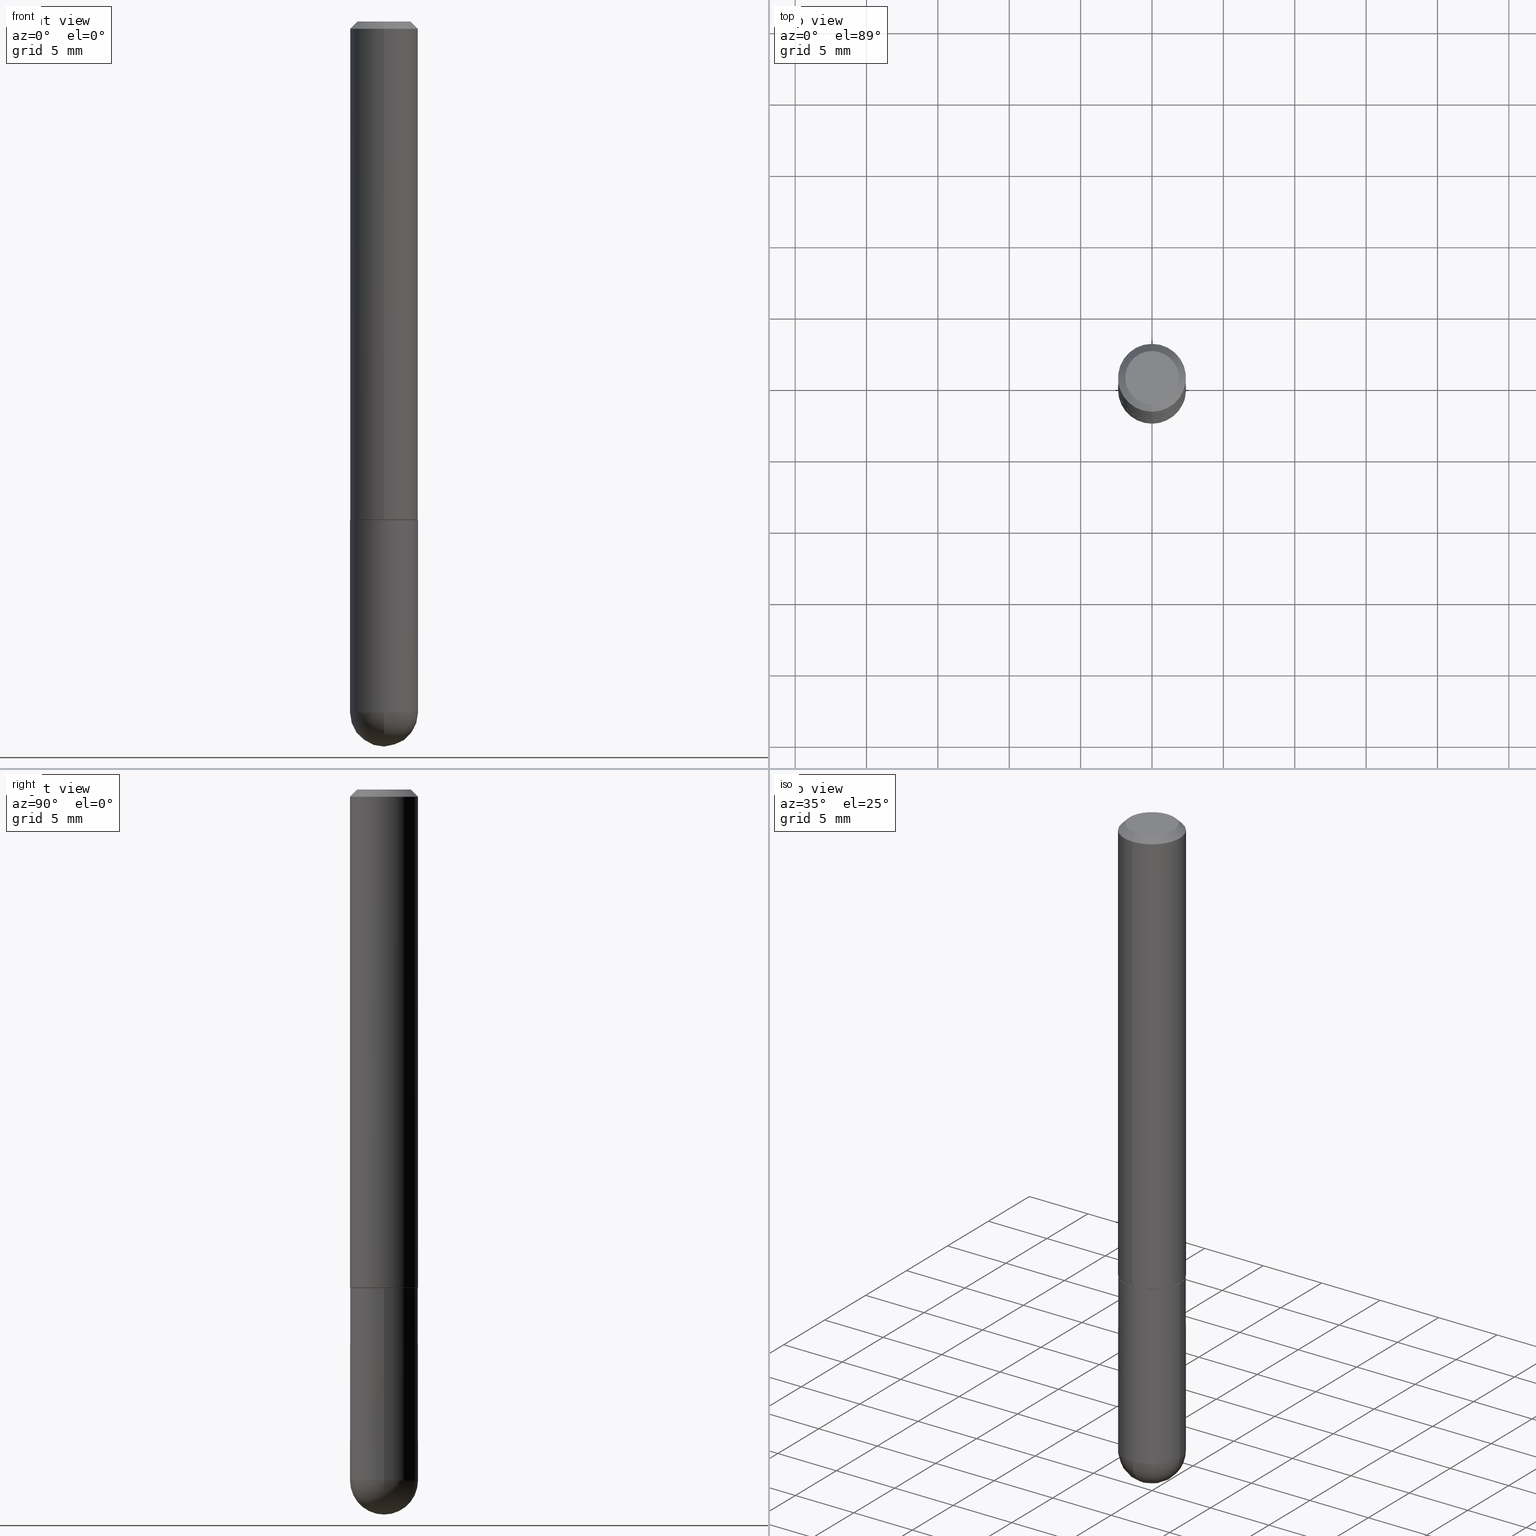
[diagram: canonical four-view strip — front | top / right | iso, engineering-drawing reading convention]
A machine part, canonical four-view strip (front | top / right | iso — engineering-drawing reading convention). The complete STEP part file that produces these views, byte-faithful:
ISO-10303-21;
HEADER;
FILE_DESCRIPTION (( 'STEP AP203' ),
    '1' );
FILE_NAME ('30042.STEP',
    '2024-02-21T16:34:47',
    ( '' ),
    ( '' ),
    'SwSTEP 2.0',
    'SolidWorks 2023',
    '' );
FILE_SCHEMA (( 'CONFIG_CONTROL_DESIGN' ));
ENDSEC;

DATA;
#1 = PRODUCT_RELATED_PRODUCT_CATEGORY ( 'detail', '', ( #290 ) ) ;
#2 = LINE ( 'NONE', #206, #280 ) ;
#3 = ADVANCED_FACE ( 'NONE', ( #48 ), #278, .T. ) ;
#4 = CARTESIAN_POINT ( 'NONE',  ( -6.661338147750496494E-16, -0.09375000000000702216, -1.906249999999999556 ) ) ;
#5 = PERSON_AND_ORGANIZATION ( #156, #126 ) ;
#6 = CLOSED_SHELL ( 'NONE', ( #3, #340, #371, #360, #263, #181, #59, #45 ) ) ;
#7 = CARTESIAN_POINT ( 'NONE',  ( 1.026711923411139363E-46, -1.466656753628731652E-32, -4.199547131448685395E-18 ) ) ;
#8 = CARTESIAN_POINT ( 'NONE',  ( 0.000000000000000000, 0.000000000000000000, 0.000000000000000000 ) ) ;
#9 = ORIENTED_EDGE ( 'NONE', *, *, #144, .T. ) ;
#10 = ORIENTED_EDGE ( 'NONE', *, *, #96, .F. ) ;
#11 = AXIS2_PLACEMENT_3D ( 'NONE', #134, #391, #44 ) ;
#12 = LOCAL_TIME ( 11, 34, 47.00000000000000000, #64 ) ;
#13 = EDGE_LOOP ( 'NONE', ( #306, #49, #116, #245 ) ) ;
#14 = VERTEX_POINT ( 'NONE', #209 ) ;
#15 = DIRECTION ( 'NONE',  ( -4.937700262164799689E-15, -0.7071067811865812125, 0.7071067811865135999 ) ) ;
#16 = VERTEX_POINT ( 'NONE', #364 ) ;
#17 = ORIENTED_EDGE ( 'NONE', *, *, #96, .T. ) ;
#18 = EDGE_CURVE ( 'NONE', #372, #16, #88, .T. ) ;
#19 = FACE_OUTER_BOUND ( 'NONE', #284, .T. ) ;
#20 = VERTEX_POINT ( 'NONE', #213 ) ;
#21 = MECHANICAL_CONTEXT ( 'NONE', #157, 'mechanical' ) ;
#22 = AXIS2_PLACEMENT_3D ( 'NONE', #67, #325, #158 ) ;
#23 = ORIENTED_EDGE ( 'NONE', *, *, #18, .T. ) ;
#24 = CARTESIAN_POINT ( 'NONE',  ( 3.361621742779019407E-29, -4.802072635731645484E-15, -1.375000000000000000 ) ) ;
#25 = DIRECTION ( 'NONE',  ( -2.444815812930196646E-29, 3.492416462350287517E-15, 1.000000000000000000 ) ) ;
#26 = EDGE_CURVE ( 'NONE', #16, #372, #331, .T. ) ;
#27 = DIRECTION ( 'NONE',  ( 0.000000000000000000, 0.000000000000000000, 1.000000000000000000 ) ) ;
#28 = DIRECTION ( 'NONE',  ( -6.982962677686265922E-15, -1.000000000000000000, 3.492416462350287517E-15 ) ) ;
#29 = CIRCLE ( 'NONE', #129, 0.09274999999999999911 ) ;
#30 = PERSON_AND_ORGANIZATION_ROLE ( 'creator' ) ;
#31 = EDGE_CURVE ( 'NONE', #368, #14, #69, .T. ) ;
#32 = PERSON_AND_ORGANIZATION ( #156, #126 ) ;
#33 = APPROVAL ( #86, 'UNSPECIFIED' ) ;
#34 = PERSON_AND_ORGANIZATION ( #156, #126 ) ;
#35 = FACE_OUTER_BOUND ( 'NONE', #304, .T. ) ;
#36 = DIRECTION ( 'NONE',  ( -1.000000000000000000, 7.105427357601001070E-15, -4.926315508542082329E-29 ) ) ;
#37 = EDGE_CURVE ( 'NONE', #145, #20, #89, .T. ) ;
#38 = ORIENTED_EDGE ( 'NONE', *, *, #31, .T. ) ;
#39 = DIRECTION ( 'NONE',  ( 2.438088387897960049E-29, -3.491481338843145188E-15, -1.000000000000000000 ) ) ;
#40 = DIRECTION ( 'NONE',  ( -2.444815812930196646E-29, 3.492416462350287517E-15, 1.000000000000000000 ) ) ;
#41 = EDGE_LOOP ( 'NONE', ( #132, #253, #361, #46 ) ) ;
#42 = CONICAL_SURFACE ( 'NONE', #152, 0.09374999999999998612, 0.7853981633974465026 ) ;
#43 = ORIENTED_EDGE ( 'NONE', *, *, #270, .F. ) ;
#44 = DIRECTION ( 'NONE',  ( 6.982962677686265133E-15, 1.000000000000000000, 0.000000000000000000 ) ) ;
#45 = ADVANCED_FACE ( 'NONE', ( #273 ), #108, .F. ) ;
#46 = ORIENTED_EDGE ( 'NONE', *, *, #401, .F. ) ;
#47 = DIRECTION ( 'NONE',  ( 1.000000000000000000, 0.000000000000000000, 0.000000000000000000 ) ) ;
#48 = FACE_OUTER_BOUND ( 'NONE', #208, .T. ) ;
#49 = ORIENTED_EDGE ( 'NONE', *, *, #93, .T. ) ;
#50 = DIRECTION ( 'NONE',  ( -1.000000000000000000, 6.982962677686265133E-15, -4.883557194083112901E-29 ) ) ;
#51 = PLANE ( 'NONE',  #195 ) ;
#52 = AXIS2_PLACEMENT_3D ( 'NONE', #87, #405, #120 ) ;
#53 = CARTESIAN_POINT ( 'NONE',  ( 0.09374999999999998612, -6.546527510330874055E-16, 4.571415727308689105E-30 ) ) ;
#54 = SPHERICAL_SURFACE ( 'NONE', #303, 0.09375000000000026368 ) ;
#55 = CYLINDRICAL_SURFACE ( 'NONE', #235, 0.09375000000000009714 ) ;
#56 = FACE_OUTER_BOUND ( 'NONE', #111, .T. ) ;
#57 = DIRECTION ( 'NONE',  ( 2.444815812930196646E-29, -3.492416462350287517E-15, -1.000000000000000000 ) ) ;
#58 = CIRCLE ( 'NONE', #319, 0.09374999999999998612 ) ;
#59 = ADVANCED_FACE ( 'NONE', ( #339 ), #51, .F. ) ;
#60 = PERSON_AND_ORGANIZATION_ROLE ( 'creator' ) ;
#61 = EDGE_CURVE ( 'NONE', #326, #138, #234, .T. ) ;
#62 = VECTOR ( 'NONE', #399, 39.37007874015748143 ) ;
#63 = DIRECTION ( 'NONE',  ( -6.982962677686265133E-15, -1.000000000000000000, 3.492416462350287911E-15 ) ) ;
#64 = COORDINATED_UNIVERSAL_TIME_OFFSET ( 5, 0, .BEHIND. ) ;
#65 = CARTESIAN_POINT ( 'NONE',  ( 4.563826426436916486E-29, -7.451404513955337857E-15, -2.000000000000000444 ) ) ;
#66 = PERSON_AND_ORGANIZATION_ROLE ( 'design_supplier' ) ;
#67 = CARTESIAN_POINT ( 'NONE',  ( 0.000000000000000000, 0.000000000000000000, 0.000000000000000000 ) ) ;
#68 = CALENDAR_DATE ( 2024, 21, 2 ) ;
#69 = CIRCLE ( 'NONE', #365, 0.09374999999999998612 ) ;
#70 = APPROVAL_PERSON_ORGANIZATION ( #148, #233, #171 ) ;
#71 = SPHERICAL_SURFACE ( 'NONE', #357, 0.09375000000000026368 ) ;
#72 = VERTEX_POINT ( 'NONE', #255 ) ;
#73 = ORIENTED_EDGE ( 'NONE', *, *, #347, .T. ) ;
#74 = ORIENTED_EDGE ( 'NONE', *, *, #386, .T. ) ;
#75 = FACE_OUTER_BOUND ( 'NONE', #13, .T. ) ;
#76 = ADVANCED_FACE ( 'NONE', ( #374 ), #388, .F. ) ;
#77 = ORIENTED_EDGE ( 'NONE', *, *, #292, .T. ) ;
#78 = AXIS2_PLACEMENT_3D ( 'NONE', #202, #36, #130 ) ;
#79 = PRODUCT_DEFINITION_FORMATION_WITH_SPECIFIED_SOURCE ( 'ANY', '', #290, .NOT_KNOWN. ) ;
#80 = EDGE_LOOP ( 'NONE', ( #136, #390, #276, #335 ) ) ;
#81 = DIRECTION ( 'NONE',  ( -2.445468806185136877E-29, 3.491481338843145188E-15, 1.000000000000000000 ) ) ;
#82 = EDGE_LOOP ( 'NONE', ( #117, #239, #172, #10 ) ) ;
#83 = ORIENTED_EDGE ( 'NONE', *, *, #201, .F. ) ;
#84 = DATE_AND_TIME ( #215, #186 ) ;
#85 = CARTESIAN_POINT ( 'NONE',  ( -6.476697883553675688E-16, -0.09275000000000480083, -1.374999999999999778 ) ) ;
#86 = APPROVAL_STATUS ( 'not_yet_approved' ) ;
#87 = CARTESIAN_POINT ( 'NONE',  ( 1.026711923411139363E-46, -1.466656753628731652E-32, -4.199547131448685395E-18 ) ) ;
#88 = CIRCLE ( 'NONE', #397, 0.09375000000000018041 ) ;
#89 = CIRCLE ( 'NONE', #293, 0.09374999999999998612 ) ;
#90 = CARTESIAN_POINT ( 'NONE',  ( 6.625811010963275384E-16, 0.09274999999999521128, -1.375000000000000222 ) ) ;
#91 = DIRECTION ( 'NONE',  ( 2.444815812930196646E-29, -3.492416462350287517E-15, -1.000000000000000000 ) ) ;
#92 = DATE_AND_TIME ( #378, #324 ) ;
#93 = EDGE_CURVE ( 'NONE', #243, #279, #133, .T. ) ;
#94 = AXIS2_PLACEMENT_3D ( 'NONE', #362, #207, #173 ) ;
#95 = CIRCLE ( 'NONE', #260, 0.09375000000000001388 ) ;
#96 = EDGE_CURVE ( 'NONE', #279, #105, #58, .T. ) ;
#97 = CARTESIAN_POINT ( 'NONE',  ( 4.330555133876530390E-29, -7.129818670309794948E-15, -1.906250000000000000 ) ) ;
#98 = CALENDAR_DATE ( 2024, 21, 2 ) ;
#99 = AXIS2_PLACEMENT_3D ( 'NONE', #226, #346, #316 ) ;
#100 = SECURITY_CLASSIFICATION ( '', '', #261 ) ;
#101 = DATE_AND_TIME ( #98, #320 ) ;
#102 = DIRECTION ( 'NONE',  ( -2.445468806185136597E-29, 3.491481338843145583E-15, 1.000000000000000000 ) ) ;
#103 = ADVANCED_FACE ( 'NONE', ( #75 ), #71, .T. ) ;
#104 = CARTESIAN_POINT ( 'NONE',  ( -6.546527510330880958E-16, -0.09375000000000009714, 3.274140433453397875E-16 ) ) ;
#105 = VERTEX_POINT ( 'NONE', #128 ) ;
#106 = ORIENTED_EDGE ( 'NONE', *, *, #151, .T. ) ;
#107 = DIRECTION ( 'NONE',  ( 1.000000000000000000, -6.982962677686263555E-15, 0.000000000000000000 ) ) ;
#108 = PLANE ( 'NONE',  #211 ) ;
#109 = EDGE_CURVE ( 'NONE', #14, #368, #375, .T. ) ;
#110 = ORIENTED_EDGE ( 'NONE', *, *, #230, .T. ) ;
#111 = EDGE_LOOP ( 'NONE', ( #359, #392, #217, #38 ) ) ;
#112 = ORIENTED_EDGE ( 'NONE', *, *, #151, .F. ) ;
#113 = AXIS2_PLACEMENT_3D ( 'NONE', #182, #404, #394 ) ;
#114 = DIMENSIONAL_EXPONENTS ( 1.000000000000000000, 0.000000000000000000, 0.000000000000000000, 0.000000000000000000, 0.000000000000000000, 0.000000000000000000, 0.000000000000000000 ) ;
#115 = CYLINDRICAL_SURFACE ( 'NONE', #99, 0.09374999999999998612 ) ;
#116 = ORIENTED_EDGE ( 'NONE', *, *, #386, .F. ) ;
#117 = ORIENTED_EDGE ( 'NONE', *, *, #93, .F. ) ;
#118 = CARTESIAN_POINT ( 'NONE',  ( -6.431716872910804923E-16, -0.09375000000000005551, -0.01999999999999968817 ) ) ;
#119 = ADVANCED_FACE ( 'NONE', ( #296 ), #321, .T. ) ;
#120 = DIRECTION ( 'NONE',  ( -6.982962677686265133E-15, -1.000000000000000000, 3.492416462350287911E-15 ) ) ;
#121 = FACE_OUTER_BOUND ( 'NONE', #82, .T. ) ;
#122 = AXIS2_PLACEMENT_3D ( 'NONE', #200, #412, #355 ) ;
#123 = COORDINATED_UNIVERSAL_TIME_OFFSET ( 5, 0, .BEHIND. ) ;
#124 = COORDINATED_UNIVERSAL_TIME_OFFSET ( 5, 0, .BEHIND. ) ;
#125 = VECTOR ( 'NONE', #179, 39.37007874015748143 ) ;
#126 = ORGANIZATION ( 'UNSPECIFIED', 'UNSPECIFIED', '' ) ;
#127 = APPROVAL_DATE_TIME ( #163, #197 ) ;
#128 = CARTESIAN_POINT ( 'NONE',  ( -0.09374999999999998612, -5.062077756764441261E-15, -1.906250000000000000 ) ) ;
#129 = AXIS2_PLACEMENT_3D ( 'NONE', #294, #382, #266 ) ;
#130 = DIRECTION ( 'NONE',  ( -7.105427357601001070E-15, -1.000000000000000000, 0.000000000000000000 ) ) ;
#131 = DIRECTION ( 'NONE',  ( -2.444815812930196646E-29, 3.492416462350287517E-15, 1.000000000000000000 ) ) ;
#132 = ORIENTED_EDGE ( 'NONE', *, *, #216, .F. ) ;
#133 = CIRCLE ( 'NONE', #11, 0.09375000000000026368 ) ;
#134 = CARTESIAN_POINT ( 'NONE',  ( 4.330555133876530390E-29, -7.129818670309794948E-15, -1.906250000000000000 ) ) ;
#135 = DIRECTION ( 'NONE',  ( 1.000000000000000000, -6.982962677686263555E-15, 0.000000000000000000 ) ) ;
#136 = ORIENTED_EDGE ( 'NONE', *, *, #328, .F. ) ;
#137 = CARTESIAN_POINT ( 'NONE',  ( -0.09374999999999998612, 6.661338147750938256E-16, -4.611501647113973295E-30 ) ) ;
#138 = VERTEX_POINT ( 'NONE', #323 ) ;
#139 = CARTESIAN_POINT ( 'NONE',  ( 3.359176926966090099E-29, -4.798580219269294637E-15, -1.373999999999999888 ) ) ;
#140 = EDGE_LOOP ( 'NONE', ( #23, #311, #395, #43 ) ) ;
#141 =( NAMED_UNIT ( * ) SI_UNIT ( $, .STERADIAN. ) SOLID_ANGLE_UNIT ( ) );
#142 = VECTOR ( 'NONE', #25, 39.37007874015748143 ) ;
#143 = CC_DESIGN_SECURITY_CLASSIFICATION ( #100, ( #79 ) ) ;
#144 = EDGE_CURVE ( 'NONE', #251, #72, #95, .T. ) ;
#145 = VERTEX_POINT ( 'NONE', #4 ) ;
#146 = DIRECTION ( 'NONE',  ( 2.444815812930196365E-29, -3.492416462350287517E-15, -1.000000000000000000 ) ) ;
#147 = APPLICATION_PROTOCOL_DEFINITION ( 'international standard', 'config_control_design', 1994, #157 ) ;
#148 = PERSON_AND_ORGANIZATION ( #156, #126 ) ;
#149 = LINE ( 'NONE', #137, #398 ) ;
#150 = PERSON_AND_ORGANIZATION ( #156, #126 ) ;
#151 = EDGE_CURVE ( 'NONE', #299, #329, #29, .T. ) ;
#152 = AXIS2_PLACEMENT_3D ( 'NONE', #192, #91, #220 ) ;
#153 = CC_DESIGN_PERSON_AND_ORGANIZATION_ASSIGNMENT ( #32, #66, ( #79 ) ) ;
#154 = COORDINATED_UNIVERSAL_TIME_OFFSET ( 5, 0, .BEHIND. ) ;
#155 = MANIFOLD_SOLID_BREP ( 'Body-Move/Copy2[1]', #194 ) ;
#156 = PERSON ( 'UNSPECIFIED', 'UNSPECIFIED', 'UNSPECIFIED', ('UNSPECIFIED'), ('UNSPECIFIED'), ('UNSPECIFIED') ) ;
#157 = APPLICATION_CONTEXT ( 'configuration controlled 3d designs of mechanical parts and assemblies' ) ;
#158 = DIRECTION ( 'NONE',  ( 1.000000000000000000, -6.982962677686266711E-15, 4.876176775795935793E-29 ) ) ;
#159 = DATE_AND_TIME ( #385, #12 ) ;
#160 = CIRCLE ( 'NONE', #265, 0.07375000000000005163 ) ;
#161 = MANIFOLD_SOLID_BREP ( 'Body-Move/Copy2[2]', #6 ) ;
#162 = DIRECTION ( 'NONE',  ( -2.444815812930196646E-29, 3.492416462350287517E-15, 1.000000000000000000 ) ) ;
#163 = DATE_AND_TIME ( #68, #196 ) ;
#164 = APPROVAL_ROLE ( '' ) ;
#165 = CARTESIAN_POINT ( 'NONE',  ( 3.361621742779019407E-29, -4.802072635731645484E-15, -1.375000000000000000 ) ) ;
#166 = APPROVAL_DATE_TIME ( #159, #233 ) ;
#167 = AXIS2_PLACEMENT_3D ( 'NONE', #345, #57, #291 ) ;
#168 = FACE_OUTER_BOUND ( 'NONE', #80, .T. ) ;
#169 = ORIENTED_EDGE ( 'NONE', *, *, #347, .F. ) ;
#170 = DIRECTION ( 'NONE',  ( -6.982962677686266711E-15, -1.000000000000000000, 3.505871591869138487E-15 ) ) ;
#171 = APPROVAL_ROLE ( '' ) ;
#172 = ORIENTED_EDGE ( 'NONE', *, *, #298, .F. ) ;
#173 = DIRECTION ( 'NONE',  ( -6.982962677686265922E-15, -1.000000000000000000, 2.945388672414299892E-15 ) ) ;
#174 = ORIENTED_EDGE ( 'NONE', *, *, #201, .T. ) ;
#175 = CC_DESIGN_PERSON_AND_ORGANIZATION_ASSIGNMENT ( #373, #370, ( #290 ) ) ;
#176 = CARTESIAN_POINT ( 'NONE',  ( 4.661674911790416638E-29, -6.655636302169745441E-15, -1.906250000000000000 ) ) ;
#177 = DIRECTION ( 'NONE',  ( -2.444815812930196646E-29, 3.492416462350287517E-15, 1.000000000000000000 ) ) ;
#178 = ORIENTED_EDGE ( 'NONE', *, *, #37, .T. ) ;
#179 = DIRECTION ( 'NONE',  ( 4.937700262164538576E-15, 0.7071067811865437980, -0.7071067811865512365 ) ) ;
#180 = DIRECTION ( 'NONE',  ( -2.444815812930196646E-29, 3.492416462350287517E-15, 1.000000000000000000 ) ) ;
#181 = ADVANCED_FACE ( 'NONE', ( #35 ), #312, .T. ) ;
#182 = CARTESIAN_POINT ( 'NONE',  ( 3.361621742779019407E-29, -4.802072635731645484E-15, -1.375000000000000000 ) ) ;
#183 = ORIENTED_EDGE ( 'NONE', *, *, #318, .T. ) ;
#184 = LINE ( 'NONE', #259, #125 ) ;
#185 = AXIS2_PLACEMENT_3D ( 'NONE', #139, #40, #277 ) ;
#186 = LOCAL_TIME ( 11, 34, 47.00000000000000000, #154 ) ;
#187 = DIRECTION ( 'NONE',  ( -2.444815812930196365E-29, 3.492416462350287517E-15, 1.000000000000000000 ) ) ;
#188 = LINE ( 'NONE', #314, #142 ) ;
#189 = APPLICATION_CONTEXT ( 'configuration controlled 3d designs of mechanical parts and assemblies' ) ;
#190 = LINE ( 'NONE', #118, #383 ) ;
#191 = CARTESIAN_POINT ( 'NONE',  ( 0.000000000000000000, 0.000000000000000000, 0.000000000000000000 ) ) ;
#192 = CARTESIAN_POINT ( 'NONE',  ( 4.889631625860397600E-31, -6.984832924700581049E-17, -0.02000000000000001776 ) ) ;
#193 =( CONVERSION_BASED_UNIT ( 'INCH', #225 ) LENGTH_UNIT ( ) NAMED_UNIT ( #114 ) );
#194 = CLOSED_SHELL ( 'NONE', ( #119, #406, #103, #76, #351 ) ) ;
#195 = AXIS2_PLACEMENT_3D ( 'NONE', #24, #187, #313 ) ;
#196 = LOCAL_TIME ( 11, 34, 47.00000000000000000, #380 ) ;
#197 = APPROVAL ( #232, 'UNSPECIFIED' ) ;
#198 = AXIS2_PLACEMENT_3D ( 'NONE', #240, #39, #300 ) ;
#199 = APPROVAL_PERSON_ORGANIZATION ( #34, #197, #164 ) ;
#200 = CARTESIAN_POINT ( 'NONE',  ( 3.362519608504562260E-29, -4.800786840909324930E-15, -1.375000000000000000 ) ) ;
#201 = EDGE_CURVE ( 'NONE', #329, #16, #2, .T. ) ;
#202 = CARTESIAN_POINT ( 'NONE',  ( 4.330555133876530390E-29, -7.129818670309794948E-15, -1.906250000000000000 ) ) ;
#203 = DIRECTION ( 'NONE',  ( 5.024295867788319558E-15, 0.7071067811865862085, 0.7071067811865088260 ) ) ;
#204 = VECTOR ( 'NONE', #15, 39.37007874015748854 ) ;
#205 = CC_DESIGN_APPROVAL ( #233, ( #79 ) ) ;
#206 = CARTESIAN_POINT ( 'NONE',  ( 6.590283874175264427E-16, 0.09274999999999521128, -1.375000000000000222 ) ) ;
#207 = DIRECTION ( 'NONE',  ( -2.444815812930196646E-29, 3.492416462350287517E-15, 1.000000000000000000 ) ) ;
#208 = EDGE_LOOP ( 'NONE', ( #106, #174, #241, #210 ) ) ;
#209 = CARTESIAN_POINT ( 'NONE',  ( -6.431716872910804923E-16, -0.09375000000000005551, -0.01999999999999968817 ) ) ;
#210 = ORIENTED_EDGE ( 'NONE', *, *, #292, .F. ) ;
#211 = AXIS2_PLACEMENT_3D ( 'NONE', #242, #146, #287 ) ;
#212 = CC_DESIGN_PERSON_AND_ORGANIZATION_ASSIGNMENT ( #5, #354, ( #100 ) ) ;
#213 = CARTESIAN_POINT ( 'NONE',  ( 0.09374999999999998612, -6.382864322572621901E-15, -1.906250000000000000 ) ) ;
#214 = ORIENTED_EDGE ( 'NONE', *, *, #61, .T. ) ;
#215 = CALENDAR_DATE ( 2024, 21, 2 ) ;
#216 = EDGE_CURVE ( 'NONE', #138, #326, #160, .T. ) ;
#217 = ORIENTED_EDGE ( 'NONE', *, *, #401, .T. ) ;
#218 = DIRECTION ( 'NONE',  ( -2.445468806185136597E-29, 3.491481338843145583E-15, 1.000000000000000000 ) ) ;
#219 = EDGE_LOOP ( 'NONE', ( #9, #110 ) ) ;
#220 = DIRECTION ( 'NONE',  ( 6.982962677686266711E-15, 1.000000000000000000, -3.505871591869138487E-15 ) ) ;
#221 = LINE ( 'NONE', #85, #204 ) ;
#222 = CARTESIAN_POINT ( 'NONE',  ( 4.661674911790416638E-29, -6.655636302169745441E-15, -1.906250000000000000 ) ) ;
#223 = PRODUCT_DEFINITION_SHAPE ( 'NONE', 'NONE',  #367 ) ;
#224 = FACE_OUTER_BOUND ( 'NONE', #140, .T. ) ;
#225 = LENGTH_MEASURE_WITH_UNIT ( LENGTH_MEASURE( 0.02539999999999999897 ), #315 );
#226 = CARTESIAN_POINT ( 'NONE',  ( 0.000000000000000000, 0.000000000000000000, 0.000000000000000000 ) ) ;
#227 = APPROVAL_DATE_TIME ( #92, #33 ) ;
#228 = CC_DESIGN_PERSON_AND_ORGANIZATION_ASSIGNMENT ( #348, #30, ( #367 ) ) ;
#229 = AXIS2_PLACEMENT_3D ( 'NONE', #231, #356, #236 ) ;
#230 = EDGE_CURVE ( 'NONE', #72, #251, #257, .T. ) ;
#231 = CARTESIAN_POINT ( 'NONE',  ( 4.889631625860397600E-31, -6.984832924700581049E-17, -0.02000000000000001776 ) ) ;
#232 = APPROVAL_STATUS ( 'not_yet_approved' ) ;
#233 = APPROVAL ( #244, 'UNSPECIFIED' ) ;
#234 = CIRCLE ( 'NONE', #52, 0.07375000000000005163 ) ;
#235 = AXIS2_PLACEMENT_3D ( 'NONE', #191, #246, #28 ) ;
#236 = DIRECTION ( 'NONE',  ( -6.982962677686266711E-15, -1.000000000000000000, 3.505871591869138487E-15 ) ) ;
#237 = SHAPE_DEFINITION_REPRESENTATION ( #223, #286 ) ;
#238 = VECTOR ( 'NONE', #177, 39.37007874015748143 ) ;
#239 = ORIENTED_EDGE ( 'NONE', *, *, #247, .T. ) ;
#240 = CARTESIAN_POINT ( 'NONE',  ( 6.546527510331211293E-16, 0.09374999999999521216, -1.375000000000000222 ) ) ;
#241 = ORIENTED_EDGE ( 'NONE', *, *, #18, .F. ) ;
#242 = CARTESIAN_POINT ( 'NONE',  ( 5.149934974793623868E-16, 0.07375000000000005163, -2.596654876640582300E-16 ) ) ;
#243 = VERTEX_POINT ( 'NONE', #65 ) ;
#244 = APPROVAL_STATUS ( 'not_yet_approved' ) ;
#245 = ORIENTED_EDGE ( 'NONE', *, *, #37, .F. ) ;
#246 = DIRECTION ( 'NONE',  ( -2.444815812930196646E-29, 3.492416462350287517E-15, 1.000000000000000000 ) ) ;
#247 = EDGE_CURVE ( 'NONE', #243, #145, #342, .T. ) ;
#248 = CIRCLE ( 'NONE', #379, 0.09374999999999998612 ) ;
#249 = CC_DESIGN_APPROVAL ( #197, ( #100 ) ) ;
#250 = CC_DESIGN_PERSON_AND_ORGANIZATION_ASSIGNMENT ( #267, #60, ( #79 ) ) ;
#251 = VERTEX_POINT ( 'NONE', #268 ) ;
#252 = ORIENTED_EDGE ( 'NONE', *, *, #216, .T. ) ;
#253 = ORIENTED_EDGE ( 'NONE', *, *, #407, .T. ) ;
#254 = APPLICATION_PROTOCOL_DEFINITION ( 'international standard', 'config_control_design', 1994, #189 ) ;
#255 = CARTESIAN_POINT ( 'NONE',  ( -0.09375000000000001388, -5.062077756764441261E-15, -1.375000000000000000 ) ) ;
#256 = CARTESIAN_POINT ( 'NONE',  ( -6.546527510330551608E-16, -0.09375000000000498213, -1.373999999999999666 ) ) ;
#257 = CIRCLE ( 'NONE', #122, 0.09375000000000001388 ) ;
#258 = DESIGN_CONTEXT ( 'detailed design', #189, 'design' ) ;
#259 = CARTESIAN_POINT ( 'NONE',  ( 6.546527510330878985E-16, 0.09374999999999991673, -0.02000000000000034736 ) ) ;
#260 = AXIS2_PLACEMENT_3D ( 'NONE', #352, #102, #322 ) ;
#261 = SECURITY_CLASSIFICATION_LEVEL ( 'unclassified' ) ;
#262 = DATE_TIME_ROLE ( 'creation_date' ) ;
#263 = ADVANCED_FACE ( 'NONE', ( #168 ), #297, .T. ) ;
#264 = DIRECTION ( 'NONE',  ( -1.000000000000000000, 6.982962677686265133E-15, -4.883557194083112901E-29 ) ) ;
#265 = AXIS2_PLACEMENT_3D ( 'NONE', #7, #384, #63 ) ;
#266 = DIRECTION ( 'NONE',  ( -6.982962677686265922E-15, -1.000000000000000000, 2.945388672414299892E-15 ) ) ;
#267 = PERSON_AND_ORGANIZATION ( #156, #126 ) ;
#268 = CARTESIAN_POINT ( 'NONE',  ( 0.09375000000000001388, -5.455439591942412434E-15, -1.375000000000000000 ) ) ;
#269 = DIRECTION ( 'NONE',  ( -6.982962677686265922E-15, -1.000000000000000000, 3.492416462350287517E-15 ) ) ;
#270 = EDGE_CURVE ( 'NONE', #372, #14, #387, .T. ) ;
#271 = ORIENTED_EDGE ( 'NONE', *, *, #283, .F. ) ;
#272 = AXIS2_PLACEMENT_3D ( 'NONE', #285, #27, #47 ) ;
#273 = FACE_OUTER_BOUND ( 'NONE', #334, .T. ) ;
#274 = CC_DESIGN_DATE_AND_TIME_ASSIGNMENT ( #101, #295, ( #100 ) ) ;
#275 = ORIENTED_EDGE ( 'NONE', *, *, #26, .F. ) ;
#276 = ORIENTED_EDGE ( 'NONE', *, *, #270, .T. ) ;
#277 = DIRECTION ( 'NONE',  ( -6.982962677686265922E-15, -1.000000000000000000, 2.913971193241875244E-15 ) ) ;
#278 = CONICAL_SURFACE ( 'NONE', #94, 0.09274999999999999911, 0.7853981633974995713 ) ;
#279 = VERTEX_POINT ( 'NONE', #282 ) ;
#280 = VECTOR ( 'NONE', #203, 39.37007874015748143 ) ;
#281 = CARTESIAN_POINT ( 'NONE',  ( 4.330555133876530390E-29, -7.129818670309794948E-15, -1.906250000000000000 ) ) ;
#282 = CARTESIAN_POINT ( 'NONE',  ( 6.546527510331332580E-16, 0.09374999999999322764, -1.906250000000000222 ) ) ;
#283 = EDGE_CURVE ( 'NONE', #329, #299, #408, .T. ) ;
#284 = EDGE_LOOP ( 'NONE', ( #169, #402, #178, #183, #305 ) ) ;
#285 = CARTESIAN_POINT ( 'NONE',  ( 0.000000000000000000, 0.000000000000000000, 0.000000000000000000 ) ) ;
#286 = ADVANCED_BREP_SHAPE_REPRESENTATION ( '30042', ( #155, #161, #272 ), #350 ) ;
#287 = DIRECTION ( 'NONE',  ( 6.982962677686265922E-15, 1.000000000000000000, -3.492416462350287517E-15 ) ) ;
#288 = DIRECTION ( 'NONE',  ( 1.000000000000000000, -6.982962677686263555E-15, 0.000000000000000000 ) ) ;
#289 = APPROVAL_ROLE ( '' ) ;
#290 = PRODUCT ( '30042', '30042', '', ( #21 ) ) ;
#291 = DIRECTION ( 'NONE',  ( 6.982962677686266711E-15, 1.000000000000000000, -3.505871591869138487E-15 ) ) ;
#292 = EDGE_CURVE ( 'NONE', #299, #372, #221, .T. ) ;
#293 = AXIS2_PLACEMENT_3D ( 'NONE', #309, #301, #135 ) ;
#294 = CARTESIAN_POINT ( 'NONE',  ( 3.361621742779019407E-29, -4.802072635731645484E-15, -1.375000000000000000 ) ) ;
#295 = DATE_TIME_ROLE ( 'classification_date' ) ;
#296 = FACE_OUTER_BOUND ( 'NONE', #308, .T. ) ;
#297 = CYLINDRICAL_SURFACE ( 'NONE', #353, 0.09375000000000009714 ) ;
#298 = EDGE_CURVE ( 'NONE', #105, #145, #389, .T. ) ;
#299 = VERTEX_POINT ( 'NONE', #344 ) ;
#300 = DIRECTION ( 'NONE',  ( -1.000000000000000000, 6.982962677686265922E-15, -4.876176775795935793E-29 ) ) ;
#301 = DIRECTION ( 'NONE',  ( -2.445468806185136597E-29, 3.491481338843145583E-15, 1.000000000000000000 ) ) ;
#302 = AXIS2_PLACEMENT_3D ( 'NONE', #165, #162, #358 ) ;
#303 = AXIS2_PLACEMENT_3D ( 'NONE', #281, #50, #376 ) ;
#304 = EDGE_LOOP ( 'NONE', ( #83, #337, #77, #275 ) ) ;
#305 = ORIENTED_EDGE ( 'NONE', *, *, #230, .F. ) ;
#306 = ORIENTED_EDGE ( 'NONE', *, *, #247, .F. ) ;
#307 = DIRECTION ( 'NONE',  ( -2.445468806185136597E-29, 3.491481338843145583E-15, 1.000000000000000000 ) ) ;
#308 = EDGE_LOOP ( 'NONE', ( #17, #73, #369, #332, #74 ) ) ;
#309 = CARTESIAN_POINT ( 'NONE',  ( 4.661674911790416638E-29, -6.655636302169745441E-15, -1.906250000000000000 ) ) ;
#310 = UNCERTAINTY_MEASURE_WITH_UNIT (LENGTH_MEASURE( 1.000000000000000082E-05 ), #193, 'distance_accuracy_value', 'NONE');
#311 = ORIENTED_EDGE ( 'NONE', *, *, #328, .T. ) ;
#312 = CONICAL_SURFACE ( 'NONE', #302, 0.09274999999999999911, 0.7853981633974995713 ) ;
#313 = DIRECTION ( 'NONE',  ( -6.982962677686265922E-15, -1.000000000000000000, 3.492416462350287517E-15 ) ) ;
#314 = CARTESIAN_POINT ( 'NONE',  ( 6.661338147750944173E-16, 0.09375000000000009714, -3.274140433453397875E-16 ) ) ;
#315 =( LENGTH_UNIT ( ) NAMED_UNIT ( * ) SI_UNIT ( $, .METRE. ) );
#316 = DIRECTION ( 'NONE',  ( 1.000000000000000000, -6.982962677686266711E-15, 4.876176775795935793E-29 ) ) ;
#317 = AXIS2_PLACEMENT_3D ( 'NONE', #341, #218, #366 ) ;
#318 = EDGE_CURVE ( 'NONE', #20, #251, #336, .T. ) ;
#319 = AXIS2_PLACEMENT_3D ( 'NONE', #176, #307, #107 ) ;
#320 = LOCAL_TIME ( 11, 34, 47.00000000000000000, #124 ) ;
#321 = CYLINDRICAL_SURFACE ( 'NONE', #22, 0.09374999999999998612 ) ;
#322 = DIRECTION ( 'NONE',  ( 1.000000000000000000, -6.982962677686261189E-15, 0.000000000000000000 ) ) ;
#323 = CARTESIAN_POINT ( 'NONE',  ( -5.745667073133655554E-16, -0.07375000000000005163, 2.533661669668852000E-16 ) ) ;
#324 = LOCAL_TIME ( 11, 34, 47.00000000000000000, #123 ) ;
#325 = DIRECTION ( 'NONE',  ( -2.445468806185136597E-29, 3.491481338843145583E-15, 1.000000000000000000 ) ) ;
#326 = VERTEX_POINT ( 'NONE', #333 ) ;
#327 = DIRECTION ( 'NONE',  ( -6.982962677686265922E-15, -1.000000000000000000, 2.913971193241875244E-15 ) ) ;
#328 = EDGE_CURVE ( 'NONE', #16, #368, #188, .T. ) ;
#329 = VERTEX_POINT ( 'NONE', #90 ) ;
#330 = DIRECTION ( 'NONE',  ( -2.444815812930196646E-29, 3.492416462350287517E-15, 1.000000000000000000 ) ) ;
#331 = CIRCLE ( 'NONE', #185, 0.09375000000000018041 ) ;
#332 = ORIENTED_EDGE ( 'NONE', *, *, #318, .F. ) ;
#333 = CARTESIAN_POINT ( 'NONE',  ( 5.848231242562251920E-16, 0.07375000000000005163, -2.617652612297826062E-16 ) ) ;
#334 = EDGE_LOOP ( 'NONE', ( #214, #252 ) ) ;
#335 = ORIENTED_EDGE ( 'NONE', *, *, #31, .F. ) ;
#336 = LINE ( 'NONE', #53, #62 ) ;
#337 = ORIENTED_EDGE ( 'NONE', *, *, #283, .T. ) ;
#338 = DIRECTION ( 'NONE',  ( -2.445468806185136597E-29, 3.491481338843145583E-15, 1.000000000000000000 ) ) ;
#339 = FACE_OUTER_BOUND ( 'NONE', #363, .T. ) ;
#340 = ADVANCED_FACE ( 'NONE', ( #224 ), #55, .T. ) ;
#341 = CARTESIAN_POINT ( 'NONE',  ( 4.661674911790416638E-29, -6.655636302169745441E-15, -1.906250000000000000 ) ) ;
#342 = CIRCLE ( 'NONE', #78, 0.09375000000000026368 ) ;
#343 = CARTESIAN_POINT ( 'NONE',  ( 6.546527510330878985E-16, 0.09374999999999991673, -0.02000000000000034736 ) ) ;
#344 = CARTESIAN_POINT ( 'NONE',  ( -6.476697883553675688E-16, -0.09275000000000480083, -1.374999999999999778 ) ) ;
#345 = CARTESIAN_POINT ( 'NONE',  ( 4.889631625860397600E-31, -6.984832924700581049E-17, -0.02000000000000001776 ) ) ;
#346 = DIRECTION ( 'NONE',  ( -2.445468806185136597E-29, 3.491481338843145583E-15, 1.000000000000000000 ) ) ;
#347 = EDGE_CURVE ( 'NONE', #105, #72, #149, .T. ) ;
#348 = PERSON_AND_ORGANIZATION ( #156, #126 ) ;
#349 = CONICAL_SURFACE ( 'NONE', #167, 0.09374999999999998612, 0.7853981633974465026 ) ;
#350 =( GEOMETRIC_REPRESENTATION_CONTEXT ( 3 ) GLOBAL_UNCERTAINTY_ASSIGNED_CONTEXT ( ( #310 ) ) GLOBAL_UNIT_ASSIGNED_CONTEXT ( ( #193, #403, #141 ) ) REPRESENTATION_CONTEXT ( 'NONE', 'WORKASPACE' ) );
#351 = ADVANCED_FACE ( 'NONE', ( #19 ), #115, .T. ) ;
#352 = CARTESIAN_POINT ( 'NONE',  ( 3.362519608504562260E-29, -4.800786840909324930E-15, -1.375000000000000000 ) ) ;
#353 = AXIS2_PLACEMENT_3D ( 'NONE', #8, #131, #269 ) ;
#354 = PERSON_AND_ORGANIZATION_ROLE ( 'classification_officer' ) ;
#355 = DIRECTION ( 'NONE',  ( 1.000000000000000000, -6.982962677686261189E-15, 0.000000000000000000 ) ) ;
#356 = DIRECTION ( 'NONE',  ( -2.444815812930196646E-29, 3.492416462350287517E-15, 1.000000000000000000 ) ) ;
#357 = AXIS2_PLACEMENT_3D ( 'NONE', #97, #264, #381 ) ;
#358 = DIRECTION ( 'NONE',  ( -6.982962677686265922E-15, -1.000000000000000000, 2.945388672414299892E-15 ) ) ;
#359 = ORIENTED_EDGE ( 'NONE', *, *, #407, .F. ) ;
#360 = ADVANCED_FACE ( 'NONE', ( #56 ), #42, .T. ) ;
#361 = ORIENTED_EDGE ( 'NONE', *, *, #109, .T. ) ;
#362 = CARTESIAN_POINT ( 'NONE',  ( 3.361621742779019407E-29, -4.802072635731645484E-15, -1.375000000000000000 ) ) ;
#363 = EDGE_LOOP ( 'NONE', ( #112, #271 ) ) ;
#364 = CARTESIAN_POINT ( 'NONE',  ( 6.661338147751117722E-16, 0.09374999999999537870, -1.374000000000000110 ) ) ;
#365 = AXIS2_PLACEMENT_3D ( 'NONE', #396, #180, #170 ) ;
#366 = DIRECTION ( 'NONE',  ( 1.000000000000000000, -6.982962677686263555E-15, 0.000000000000000000 ) ) ;
#367 = PRODUCT_DEFINITION ( 'UNKNOWN', '', #79, #258 ) ;
#368 = VERTEX_POINT ( 'NONE', #343 ) ;
#369 = ORIENTED_EDGE ( 'NONE', *, *, #144, .F. ) ;
#370 = PERSON_AND_ORGANIZATION_ROLE ( 'design_owner' ) ;
#371 = ADVANCED_FACE ( 'NONE', ( #411 ), #349, .T. ) ;
#372 = VERTEX_POINT ( 'NONE', #256 ) ;
#373 = PERSON_AND_ORGANIZATION ( #156, #126 ) ;
#374 = FACE_OUTER_BOUND ( 'NONE', #219, .T. ) ;
#375 = CIRCLE ( 'NONE', #229, 0.09374999999999998612 ) ;
#376 = DIRECTION ( 'NONE',  ( 6.982962677686265133E-15, 1.000000000000000000, -2.913971193241872483E-15 ) ) ;
#377 = CC_DESIGN_DATE_AND_TIME_ASSIGNMENT ( #84, #262, ( #367 ) ) ;
#378 = CALENDAR_DATE ( 2024, 21, 2 ) ;
#379 = AXIS2_PLACEMENT_3D ( 'NONE', #222, #338, #288 ) ;
#380 = COORDINATED_UNIVERSAL_TIME_OFFSET ( 5, 0, .BEHIND. ) ;
#381 = DIRECTION ( 'NONE',  ( 6.982962677686265133E-15, 1.000000000000000000, -2.913971193241872483E-15 ) ) ;
#382 = DIRECTION ( 'NONE',  ( -2.444815812930196646E-29, 3.492416462350287517E-15, 1.000000000000000000 ) ) ;
#383 = VECTOR ( 'NONE', #410, 39.37007874015748143 ) ;
#384 = DIRECTION ( 'NONE',  ( -2.444815812930196646E-29, 3.492416462350287517E-15, 1.000000000000000000 ) ) ;
#385 = CALENDAR_DATE ( 2024, 21, 2 ) ;
#386 = EDGE_CURVE ( 'NONE', #20, #279, #248, .T. ) ;
#387 = LINE ( 'NONE', #104, #238 ) ;
#388 = PLANE ( 'NONE',  #198 ) ;
#389 = CIRCLE ( 'NONE', #317, 0.09374999999999998612 ) ;
#390 = ORIENTED_EDGE ( 'NONE', *, *, #26, .T. ) ;
#391 = DIRECTION ( 'NONE',  ( 1.000000000000000000, -6.982962677686265922E-15, 4.883557194083112340E-29 ) ) ;
#392 = ORIENTED_EDGE ( 'NONE', *, *, #61, .F. ) ;
#393 = CARTESIAN_POINT ( 'NONE',  ( 3.359176926966090099E-29, -4.798580219269294637E-15, -1.373999999999999888 ) ) ;
#394 = DIRECTION ( 'NONE',  ( -6.982962677686265922E-15, -1.000000000000000000, 2.945388672414299892E-15 ) ) ;
#395 = ORIENTED_EDGE ( 'NONE', *, *, #109, .F. ) ;
#396 = CARTESIAN_POINT ( 'NONE',  ( 4.889631625860397600E-31, -6.984832924700581049E-17, -0.02000000000000001776 ) ) ;
#397 = AXIS2_PLACEMENT_3D ( 'NONE', #393, #330, #327 ) ;
#398 = VECTOR ( 'NONE', #81, 39.37007874015748143 ) ;
#399 = DIRECTION ( 'NONE',  ( -2.445468806185136877E-29, 3.491481338843145188E-15, 1.000000000000000000 ) ) ;
#400 = APPROVAL_PERSON_ORGANIZATION ( #150, #33, #289 ) ;
#401 = EDGE_CURVE ( 'NONE', #326, #368, #184, .T. ) ;
#402 = ORIENTED_EDGE ( 'NONE', *, *, #298, .T. ) ;
#403 =( NAMED_UNIT ( * ) PLANE_ANGLE_UNIT ( ) SI_UNIT ( $, .RADIAN. ) );
#404 = DIRECTION ( 'NONE',  ( -2.444815812930196646E-29, 3.492416462350287517E-15, 1.000000000000000000 ) ) ;
#405 = DIRECTION ( 'NONE',  ( -2.444815812930196646E-29, 3.492416462350287517E-15, 1.000000000000000000 ) ) ;
#406 = ADVANCED_FACE ( 'NONE', ( #121 ), #54, .T. ) ;
#407 = EDGE_CURVE ( 'NONE', #138, #14, #190, .T. ) ;
#408 = CIRCLE ( 'NONE', #113, 0.09274999999999999911 ) ;
#409 = CC_DESIGN_APPROVAL ( #33, ( #367 ) ) ;
#410 = DIRECTION ( 'NONE',  ( -4.851104656540954809E-15, -0.7071067811865486830, -0.7071067811865463515 ) ) ;
#411 = FACE_OUTER_BOUND ( 'NONE', #41, .T. ) ;
#412 = DIRECTION ( 'NONE',  ( -2.445468806185136597E-29, 3.491481338843145583E-15, 1.000000000000000000 ) ) ;
ENDSEC;
END-ISO-10303-21;
